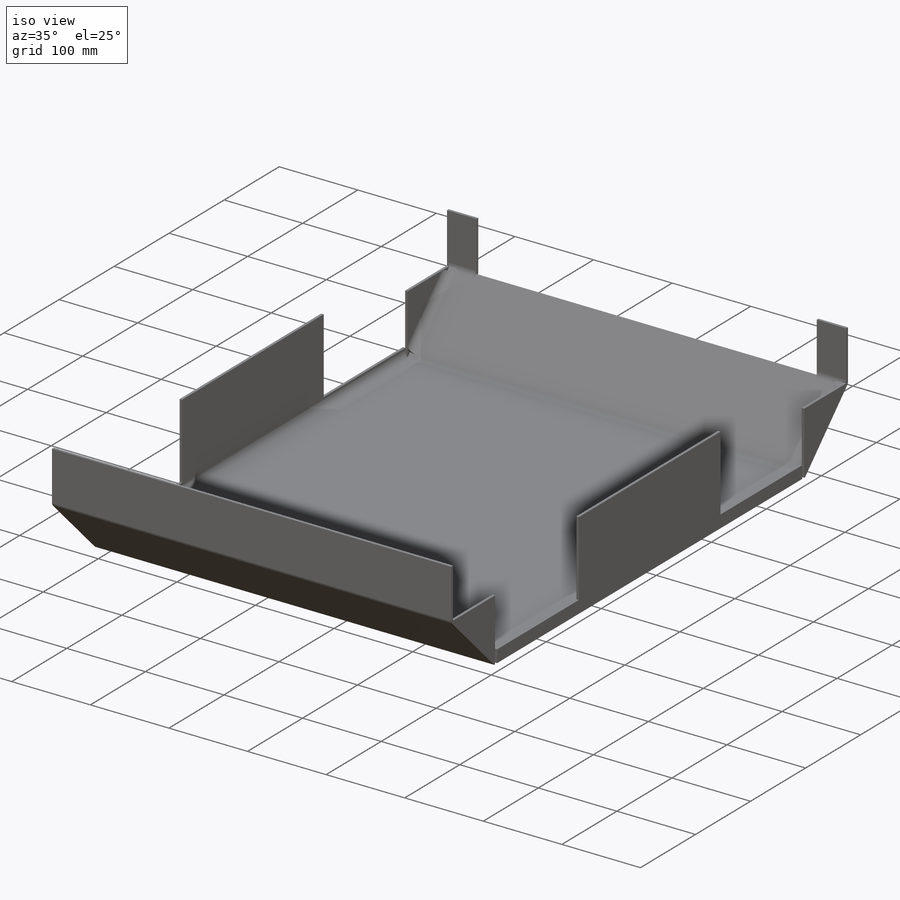
[diagram: iso view]
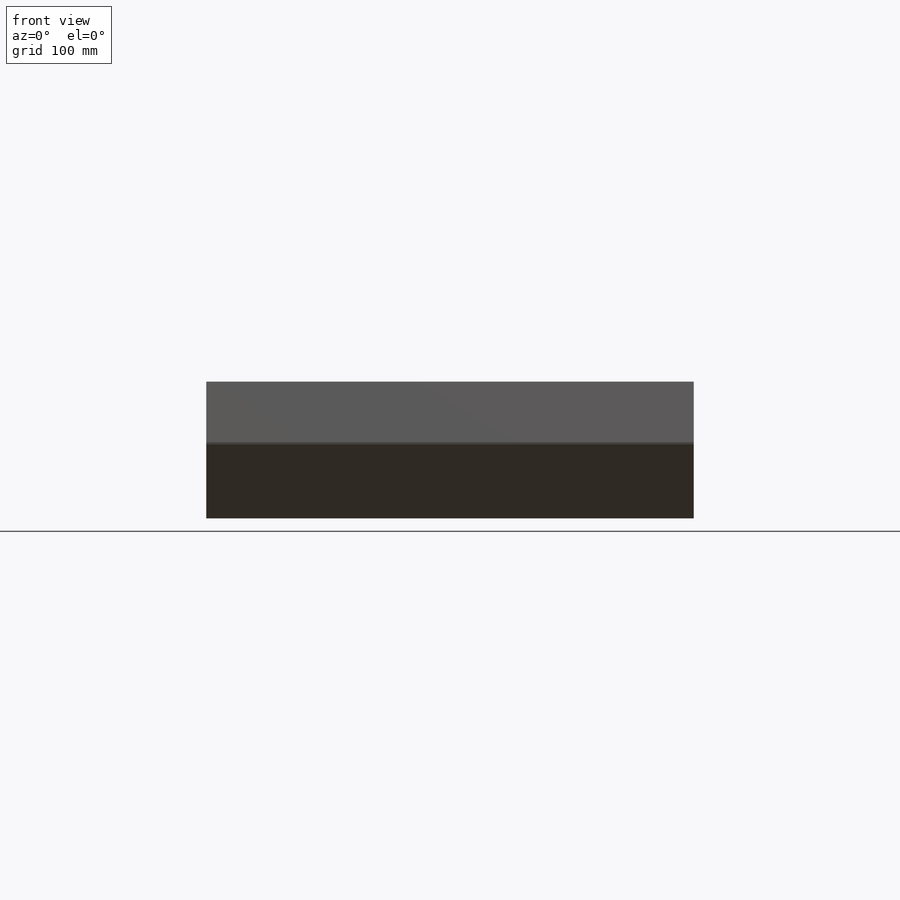
[diagram: front view]
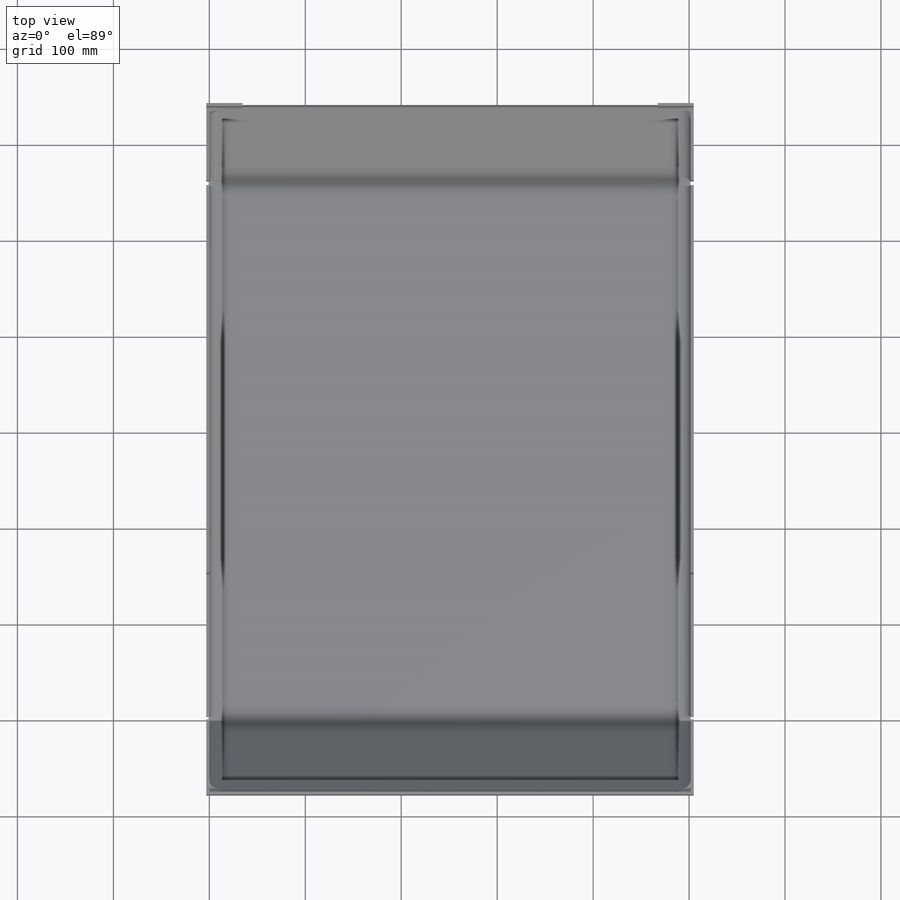
[diagram: top view]
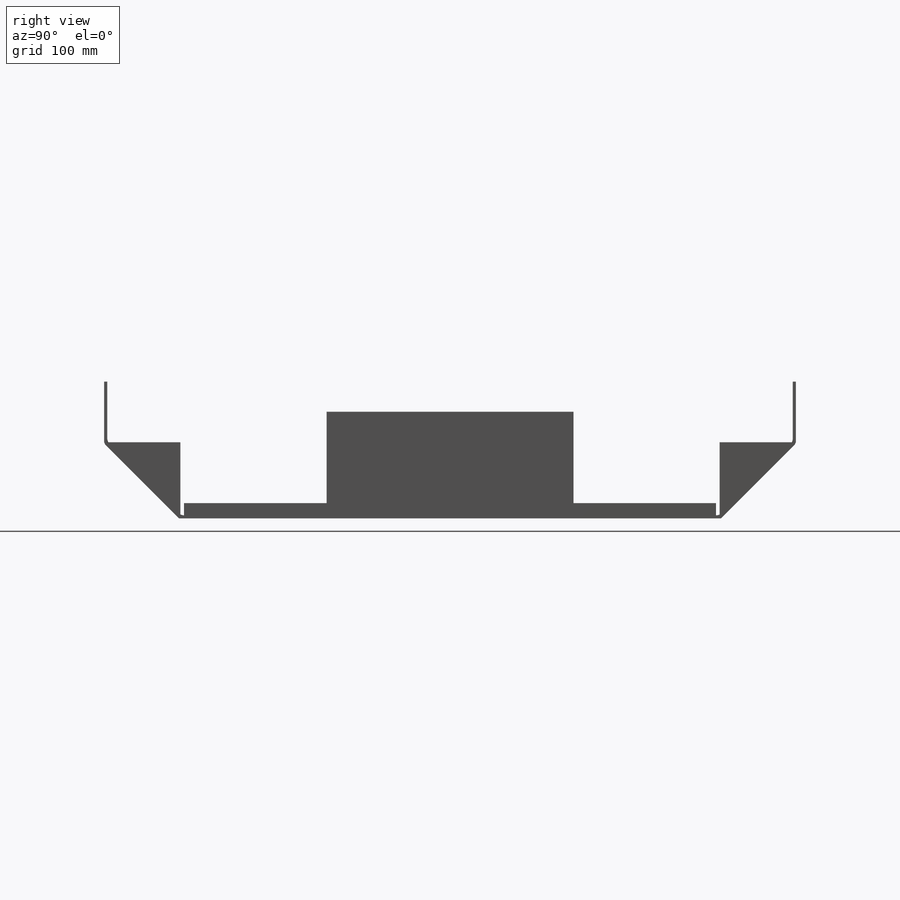
[diagram: right view]
SOLIDWORKS PART (.sldprt)
format: sldprt  version: not decoded by parser v0  size: 826,880 bytes
history: native  units: mm
features: sketch x15, sheet_metal_op x11, extrude x7, cut_extrude x4, material x1 + 1 further entry (+12 scaffold rows collapsed; 1 parser-record rows omitted)
feature tree (52):
  scaffold x12  (default folders/planes/origin — collapsed)
  material  "Material <not specified>"
  sketch  "Sketch1"  dims[D1=562.102mm D2=76.2mm D3=76.2mm D4=76.2mm D5=76.2mm D6=3.175mm]
  extrude  "Boss-Extrude1"  Depth=501.65mm
  sketch  "Sketch2"
  extrude  "Boss-Extrude2"  Depth=3.175mm
  sketch  "Sketch3"
  extrude  "Boss-Extrude3"  Depth=3.175mm
  sketch  "Sketch30"  dims[D1=152.4mm D2=152.4mm D3=12.7mm D4=12.7mm]
  cut_extrude  "Cut-Extrude10"  Depth=551.18mm
  sketch  "Sketch31"
  extrude  "Boss-Extrude9"  Depth=31.75mm
  sketch  "Sketch32"  dims[D1=63.246mm D2=63.246mm]
  extrude  "Boss-Extrude10"  Depth=508mm
  sketch  "Sketch33"  dims[D1=3.175mm D2=63.246mm D3=63.246mm]
  extrude  "Boss-Extrude11"  Depth=37.592mm
  sketch  "Sketch34"
  extrude  "Boss-Extrude12"  Depth=37.592mm
  sketch  "Sketch35"  dims[D1=1.27mm]
  cut_extrude  "Cut-Extrude11"  Depth=37.592mm
  sketch  "Sketch36"  dims[D1=1.27mm D2=1.27mm D3=1.27mm]
  cut_extrude  "Cut-Extrude12"  Depth=37.592mm
  sketch  "Sketch41"  dims[D1=3.81mm D2=3.81mm D3=3.81mm D4=3.81mm]
  cut_extrude  "Cut-Extrude13"  Depth=37.592mm SharpBend2=0 SharpBend3=0 SharpBend4=0 SharpBend5=0 SharpBend6=0 SharpBend7=0 SharpBend8=0 SharpBend9=0 SharpBend10=0 SharpBend11=0
  sketch  "Bend-Lines1"
  sketch  "Bounding-Box1"
  sheet_metal_op  "Sheet-Metal62"
  "Flat-Pattern62"
  sketch  "Bend-Lines2"
  sketch  "Bounding-Box2"
  sheet_metal_op  "Flatten-<SharpBend2>1"
  sheet_metal_op  "Flatten-<SharpBend3>1"
  sheet_metal_op  "Flatten-<SharpBend4>1"
  sheet_metal_op  "Flatten-<SharpBend5>1"
  sheet_metal_op  "Flatten-<SharpBend6>1"
  sheet_metal_op  "Flatten-<SharpBend7>1"
  sheet_metal_op  "Flatten-<SharpBend8>1"
  sheet_metal_op  "Flatten-<SharpBend9>1"
  sheet_metal_op  "Flatten-<SharpBend10>1"
  sheet_metal_op  "Flatten-<SharpBend11>1"
  parser-record x1  (decoder bookkeeping rows leaked as tree rows — omitted from the tree; the rows remain in map.json)
decode coverage: 18 of 37 modeling features carry decoded parameters; 1 rows unclassified (native names shown)
note: suppression state not decoded; provenance and decode notes live in map.json
